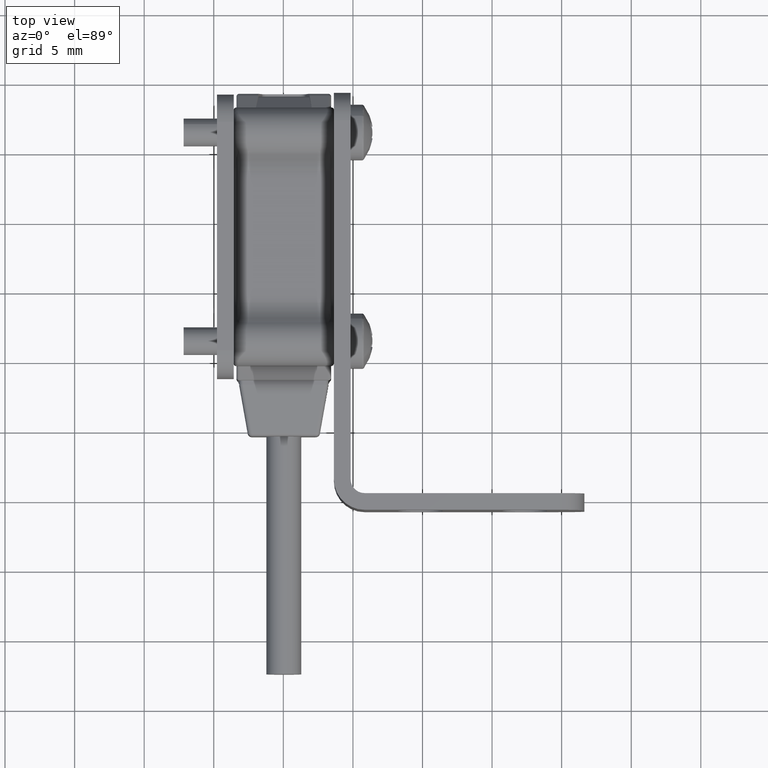
[diagram: clean part render]
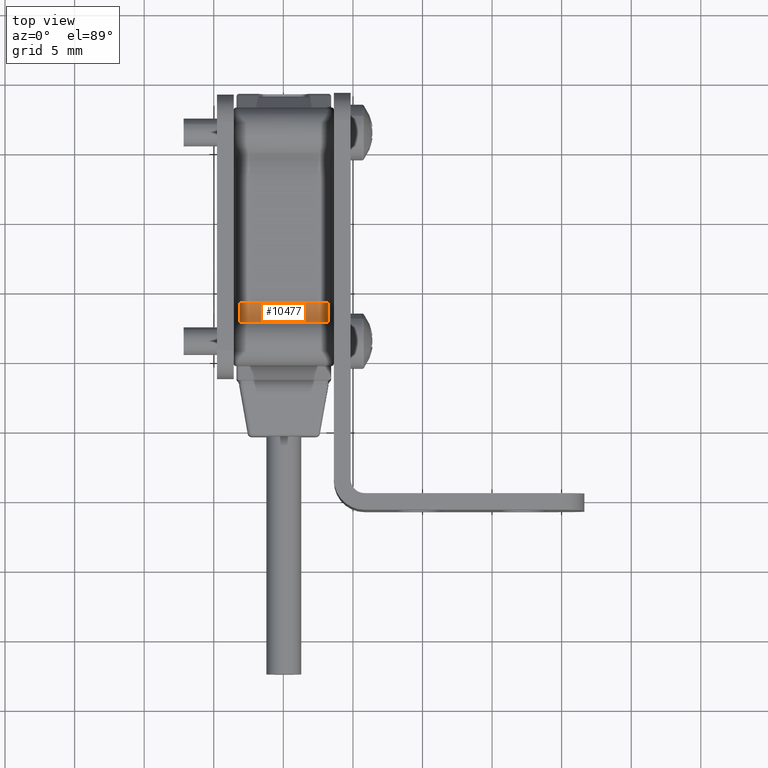
[diagram: same view with one face highlighted and labeled with its STEP entity id]
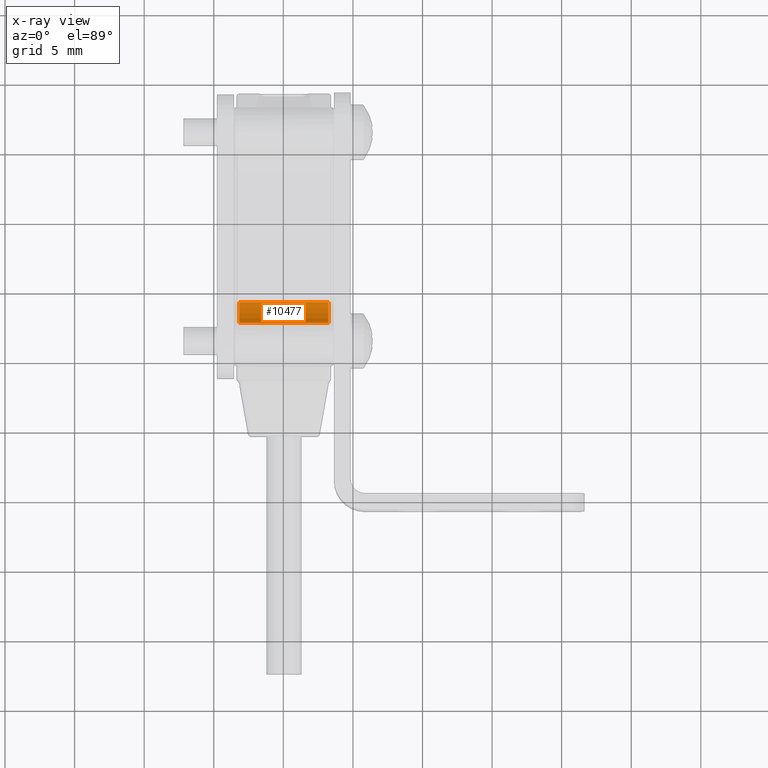
[diagram: x-ray of the same camera — body ghosted, the highlighted face saturated]
A machine part, top view. The second image highlights one B-rep face of the part: STEP entity #10477.
The next image is the same camera in x-ray: the body ghosted, the highlighted face saturated — about 0% of this face is hidden behind the body in this view.
In plain terms, the highlighted cylindrical surface (edge-blend (fillet) strip) has radius 2 mm, axis along (1, 0, 0).
Its self-contained STEP definition (entity closure, byte-faithful):
#145 = CARTESIAN_POINT ( 'NONE',  ( 3.200000000000001510, -2.242614734582485614, 3.230671669760473819 ) ) ;
#355 = EDGE_CURVE ( 'NONE', #10537, #13930, #16379, .T. ) ;
#1054 = VERTEX_POINT ( 'NONE', #8292 ) ;
#1209 = DIRECTION ( 'NONE',  ( -1.000000000000000000, -1.045014142154773872E-16, -1.178326867330372082E-30 ) ) ;
#2523 = VERTEX_POINT ( 'NONE', #6427 ) ;
#3020 = EDGE_CURVE ( 'NONE', #10537, #2523, #7993, .T. ) ;
#3996 = DIRECTION ( 'NONE',  ( 1.000000000000000000, 1.045014142154773872E-16, 1.178326867330372082E-30 ) ) ;
#4069 = LINE ( 'NONE', #10087, #16221 ) ;
#4511 = DIRECTION ( 'NONE',  ( -1.000000000000000000, -1.045014142154773872E-16, -2.161850253356914880E-32 ) ) ;
#4795 = FACE_OUTER_BOUND ( 'NONE', #16102, .T. ) ;
#5305 = EDGE_CURVE ( 'NONE', #1054, #2523, #4069, .T. ) ;
#6427 = CARTESIAN_POINT ( 'NONE',  ( 3.200000000000001510, -0.7840456334709551278, 2.599092722391171950 ) ) ;
#6634 = ORIENTED_EDGE ( 'NONE', *, *, #9468, .T. ) ;
#6938 = CARTESIAN_POINT ( 'NONE',  ( -3.200000000000001510, -0.7840456334709758890, 4.599092722391076471 ) ) ;
#6958 = CARTESIAN_POINT ( 'NONE',  ( 3.200000000000001510, -0.7840456334709758890, 4.599092722391076471 ) ) ;
#7993 = CIRCLE ( 'NONE', #10194, 2.000000000000000000 ) ;
#8292 = CARTESIAN_POINT ( 'NONE',  ( -3.200000000000001510, -0.7840456334709551278, 2.599092722391171950 ) ) ;
#8389 = AXIS2_PLACEMENT_3D ( 'NONE', #9132, #10610, #15165 ) ;
#8505 = DIRECTION ( 'NONE',  ( 0.000000000000000000, -1.127570259384924611E-14, 1.000000000000000000 ) ) ;
#9132 = CARTESIAN_POINT ( 'NONE',  ( -3.500000000000003109, -0.7840456334709758890, 4.599092722391076471 ) ) ;
#9468 = EDGE_CURVE ( 'NONE', #1054, #13930, #15636, .T. ) ;
#9775 = ORIENTED_EDGE ( 'NONE', *, *, #5305, .F. ) ;
#10087 = CARTESIAN_POINT ( 'NONE',  ( -3.500000000000003109, -0.7840456334709551278, 2.599092722391171950 ) ) ;
#10182 = ORIENTED_EDGE ( 'NONE', *, *, #355, .F. ) ;
#10194 = AXIS2_PLACEMENT_3D ( 'NONE', #6958, #3996, #14647 ) ;
#10477 = ADVANCED_FACE ( 'NONE', ( #4795 ), #12284, .F. ) ;
#10537 = VERTEX_POINT ( 'NONE', #145 ) ;
#10610 = DIRECTION ( 'NONE',  ( 1.000000000000000000, 1.045014142154773872E-16, 1.178326867330372082E-30 ) ) ;
#10935 = ORIENTED_EDGE ( 'NONE', *, *, #3020, .T. ) ;
#11768 = CARTESIAN_POINT ( 'NONE',  ( -3.200000000000001510, -2.242614734582485614, 3.230671669760473819 ) ) ;
#11867 = DIRECTION ( 'NONE',  ( 1.000000000000000000, 1.045014142154773872E-16, 2.161850253356914880E-32 ) ) ;
#12284 = CYLINDRICAL_SURFACE ( 'NONE', #8389, 2.000000000000000000 ) ;
#13286 = CARTESIAN_POINT ( 'NONE',  ( -3.500000000000003109, -2.242614734582485614, 3.230671669760473819 ) ) ;
#13930 = VERTEX_POINT ( 'NONE', #11768 ) ;
#14647 = DIRECTION ( 'NONE',  ( 0.000000000000000000, 1.127570259384924611E-14, -1.000000000000000000 ) ) ;
#14667 = AXIS2_PLACEMENT_3D ( 'NONE', #6938, #1209, #8505 ) ;
#15165 = DIRECTION ( 'NONE',  ( 0.000000000000000000, 1.127570259384924611E-14, -1.000000000000000000 ) ) ;
#15636 = CIRCLE ( 'NONE', #14667, 2.000000000000000000 ) ;
#16102 = EDGE_LOOP ( 'NONE', ( #10182, #10935, #9775, #6634 ) ) ;
#16221 = VECTOR ( 'NONE', #11867, 1000.000000000000000 ) ;
#16379 = LINE ( 'NONE', #13286, #18389 ) ;
#18389 = VECTOR ( 'NONE', #4511, 1000.000000000000000 ) ;